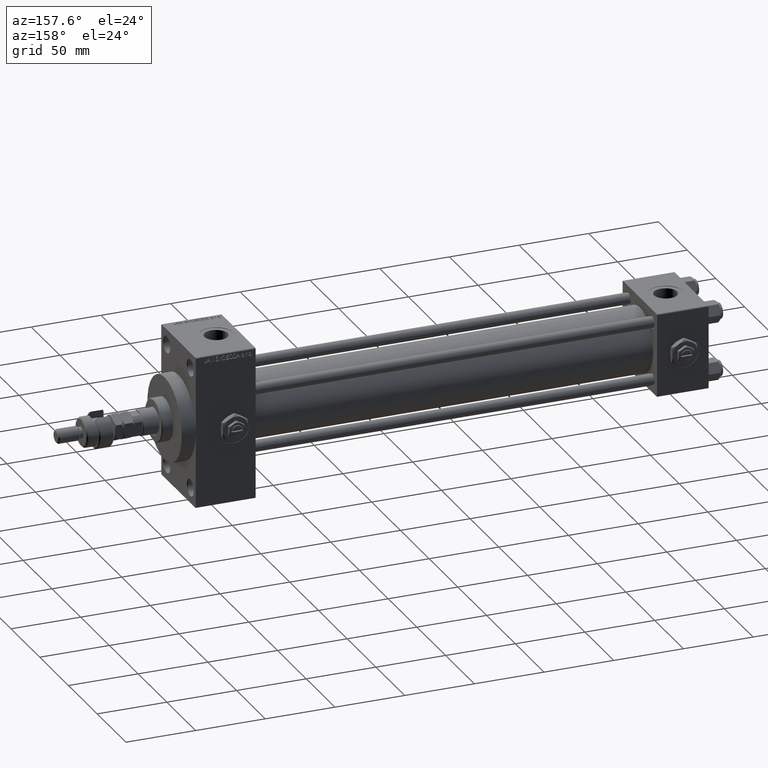
[diagram: clean part render]
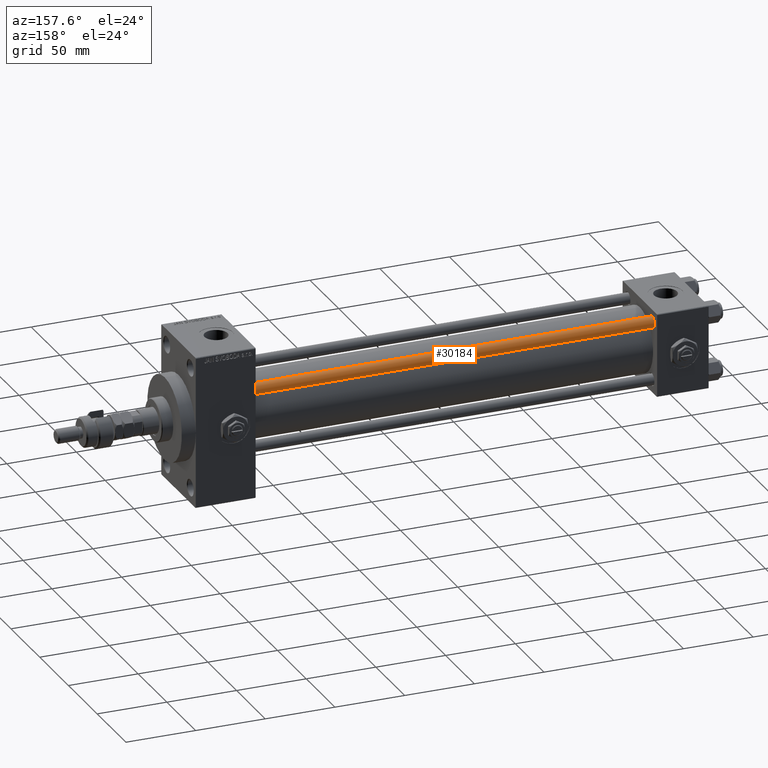
[diagram: same view with one face highlighted and labeled with its STEP entity id]
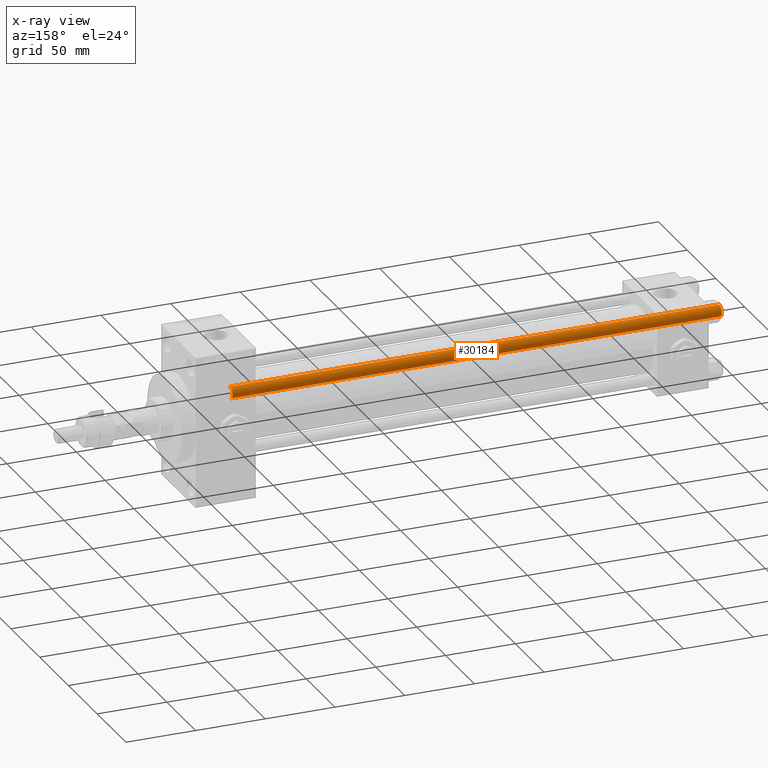
[diagram: x-ray of the same camera — body ghosted, the highlighted face saturated]
A machine part, auxiliary view. The second image highlights one B-rep face of the part: STEP entity #30184.
The next image is the same camera in x-ray: the body ghosted, the highlighted face saturated — about 0% of this face is hidden behind the body in this view.
In plain terms, the highlighted cylindrical surface (edge-blend (fillet) strip) has radius 4 mm, axis along (-1, -0, 0).
Its self-contained STEP definition (entity closure, byte-faithful):
#339 = ORIENTED_EDGE ( 'NONE', *, *, #24620, .F. ) ;
#3538 = CYLINDRICAL_SURFACE ( 'NONE', #41484, 4.000000000000000000 ) ;
#5797 = VERTEX_POINT ( 'NONE', #46374 ) ;
#8257 = CARTESIAN_POINT ( 'NONE',  ( 0.000000000000000000, 0.000000000000000000, 352.0000000000000000 ) ) ;
#11377 = CIRCLE ( 'NONE', #18099, 4.000000000000000000 ) ;
#13100 = CARTESIAN_POINT ( 'NONE',  ( 0.000000000000000000, 0.000000000000000000, 351.5000000000000000 ) ) ;
#14286 = VERTEX_POINT ( 'NONE', #50319 ) ;
#16003 = CARTESIAN_POINT ( 'NONE',  ( -4.000000000000000000, 0.000000000000000000, 352.0000000000000000 ) ) ;
#18099 = AXIS2_PLACEMENT_3D ( 'NONE', #27119, #23159, #35529 ) ;
#19962 = EDGE_CURVE ( 'NONE', #14286, #31452, #29721, .T. ) ;
#20496 = ORIENTED_EDGE ( 'NONE', *, *, #34632, .T. ) ;
#20720 = DIRECTION ( 'NONE',  ( 1.000000000000000000, 0.000000000000000000, 0.000000000000000000 ) ) ;
#21565 = CARTESIAN_POINT ( 'NONE',  ( -4.000000000000000000, 0.000000000000000000, 351.5000000000000000 ) ) ;
#22610 = EDGE_LOOP ( 'NONE', ( #35105, #47891, #20496, #339 ) ) ;
#23159 = DIRECTION ( 'NONE',  ( -0.000000000000000000, -0.000000000000000000, 1.000000000000000000 ) ) ;
#24620 = EDGE_CURVE ( 'NONE', #51207, #5797, #40225, .T. ) ;
#24663 = EDGE_CURVE ( 'NONE', #51207, #14286, #45506, .T. ) ;
#25061 = CARTESIAN_POINT ( 'NONE',  ( 4.000000000000000000, 4.898587196589412829E-16, 0.5000000000000004441 ) ) ;
#27119 = CARTESIAN_POINT ( 'NONE',  ( 0.000000000000000000, 0.000000000000000000, 0.5000000000000004441 ) ) ;
#27243 = DIRECTION ( 'NONE',  ( -1.000000000000000000, 0.000000000000000000, 0.000000000000000000 ) ) ;
#29721 = LINE ( 'NONE', #50262, #41226 ) ;
#30184 = ADVANCED_FACE ( 'NONE', ( #48287 ), #3538, .T. ) ;
#31452 = VERTEX_POINT ( 'NONE', #25061 ) ;
#33350 = DIRECTION ( 'NONE',  ( 0.000000000000000000, 0.000000000000000000, -1.000000000000000000 ) ) ;
#34632 = EDGE_CURVE ( 'NONE', #31452, #5797, #11377, .T. ) ;
#35105 = ORIENTED_EDGE ( 'NONE', *, *, #24663, .T. ) ;
#35529 = DIRECTION ( 'NONE',  ( 1.000000000000000000, 0.000000000000000000, 0.000000000000000000 ) ) ;
#40225 = LINE ( 'NONE', #16003, #48104 ) ;
#41226 = VECTOR ( 'NONE', #45791, 1000.000000000000000 ) ;
#41484 = AXIS2_PLACEMENT_3D ( 'NONE', #8257, #44092, #27243 ) ;
#44092 = DIRECTION ( 'NONE',  ( -0.000000000000000000, -0.000000000000000000, -1.000000000000000000 ) ) ;
#45506 = CIRCLE ( 'NONE', #50552, 4.000000000000000000 ) ;
#45791 = DIRECTION ( 'NONE',  ( -0.000000000000000000, -0.000000000000000000, -1.000000000000000000 ) ) ;
#46374 = CARTESIAN_POINT ( 'NONE',  ( -4.000000000000000000, 0.000000000000000000, 0.5000000000000004441 ) ) ;
#47891 = ORIENTED_EDGE ( 'NONE', *, *, #19962, .T. ) ;
#48104 = VECTOR ( 'NONE', #48130, 1000.000000000000000 ) ;
#48130 = DIRECTION ( 'NONE',  ( -0.000000000000000000, -0.000000000000000000, -1.000000000000000000 ) ) ;
#48287 = FACE_OUTER_BOUND ( 'NONE', #22610, .T. ) ;
#50262 = CARTESIAN_POINT ( 'NONE',  ( 4.000000000000000000, 4.898587196589412829E-16, 352.0000000000000000 ) ) ;
#50319 = CARTESIAN_POINT ( 'NONE',  ( 4.000000000000000000, 4.898587196589412829E-16, 351.5000000000000000 ) ) ;
#50552 = AXIS2_PLACEMENT_3D ( 'NONE', #13100, #33350, #20720 ) ;
#51207 = VERTEX_POINT ( 'NONE', #21565 ) ;